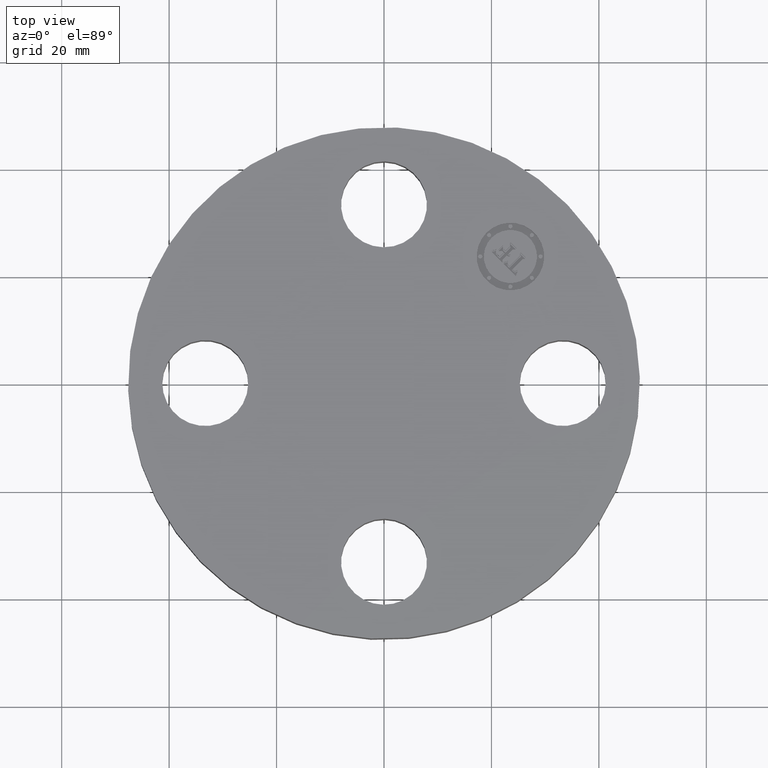
[diagram: clean part render]
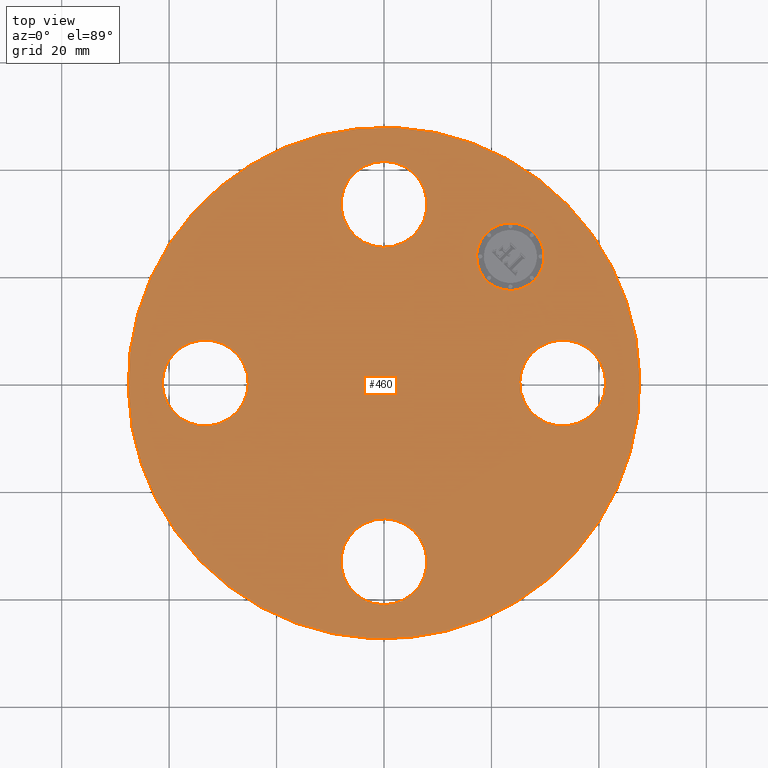
[diagram: same view with one face highlighted and labeled with its STEP entity id]
A machine part, top view. The second image highlights one B-rep face of the part: STEP entity #460.
In plain terms, the highlighted planar face has unit normal (0, 0, -1).
Its self-contained STEP definition (entity closure, byte-faithful):
#65=AXIS2_PLACEMENT_3D('Circle Axis2P3D',#63,#64,$) ;
#82=AXIS2_PLACEMENT_3D('Circle Axis2P3D',#80,#81,$) ;
#115=AXIS2_PLACEMENT_3D('Circle Axis2P3D',#113,#114,$) ;
#139=AXIS2_PLACEMENT_3D('Circle Axis2P3D',#137,#138,$) ;
#309=AXIS2_PLACEMENT_3D('Circle Axis2P3D',#307,#308,$) ;
#321=AXIS2_PLACEMENT_3D('Circle Axis2P3D',#319,#320,$) ;
#352=AXIS2_PLACEMENT_3D('Circle Axis2P3D',#350,#351,$) ;
#364=AXIS2_PLACEMENT_3D('Circle Axis2P3D',#362,#363,$) ;
#395=AXIS2_PLACEMENT_3D('Circle Axis2P3D',#393,#394,$) ;
#407=AXIS2_PLACEMENT_3D('Circle Axis2P3D',#405,#406,$) ;
#420=AXIS2_PLACEMENT_3D('Plane Axis2P3D',#417,#418,#419) ;
#444=AXIS2_PLACEMENT_3D('Circle Axis2P3D',#442,#443,$) ;
#453=AXIS2_PLACEMENT_3D('Circle Axis2P3D',#451,#452,$) ;
#46=CARTESIAN_POINT('Vertex',(1.03356149301,0.151019044661,0.560000000002)) ;
#60=CARTESIAN_POINT('Vertex',(1.586438507,-0.151019044661,0.560000000002)) ;
#63=CARTESIAN_POINT('Axis2P3D Location',(1.31000000001,0.,0.560000000002)) ;
#80=CARTESIAN_POINT('Axis2P3D Location',(1.31000000001,0.,0.560000000002)) ;
#110=CARTESIAN_POINT('Vertex',(-0.898922884886,-1.64546730355,0.560000000002)) ;
#113=CARTESIAN_POINT('Axis2P3D Location',(0.,0.,0.560000000002)) ;
#117=CARTESIAN_POINT('Vertex',(0.898922884886,1.64546730355,0.560000000002)) ;
#137=CARTESIAN_POINT('Axis2P3D Location',(0.,0.,0.560000000002)) ;
#297=CARTESIAN_POINT('Vertex',(-0.151019044661,1.03356149301,0.560000000002)) ;
#304=CARTESIAN_POINT('Vertex',(0.151019044661,1.586438507,0.560000000002)) ;
#307=CARTESIAN_POINT('Axis2P3D Location',(-2.40643096033E-016,1.31000000001,0.560000000002)) ;
#319=CARTESIAN_POINT('Axis2P3D Location',(-2.40643096033E-016,1.31000000001,0.560000000002)) ;
#340=CARTESIAN_POINT('Vertex',(-1.03356149301,-0.151019044661,0.560000000002)) ;
#347=CARTESIAN_POINT('Vertex',(-1.586438507,0.151019044661,0.560000000002)) ;
#350=CARTESIAN_POINT('Axis2P3D Location',(-1.31000000001,-1.60428730689E-016,0.560000000002)) ;
#362=CARTESIAN_POINT('Axis2P3D Location',(-1.31000000001,-1.60428730689E-016,0.560000000002)) ;
#383=CARTESIAN_POINT('Vertex',(0.151019044661,-1.03356149301,0.560000000002)) ;
#390=CARTESIAN_POINT('Vertex',(-0.151019044661,-1.586438507,0.560000000002)) ;
#393=CARTESIAN_POINT('Axis2P3D Location',(-1.99526869207E-016,-1.31000000001,0.560000000002)) ;
#405=CARTESIAN_POINT('Axis2P3D Location',(-1.99526869207E-016,-1.31000000001,0.560000000002)) ;
#417=CARTESIAN_POINT('Axis2P3D Location',(0.,1.87500000001,0.560000000002)) ;
#442=CARTESIAN_POINT('Axis2P3D Location',(0.926309883358,0.926309883358,0.560000000002)) ;
#446=CARTESIAN_POINT('Vertex',(0.751300955014,1.1013188117,0.560000000002)) ;
#448=CARTESIAN_POINT('Vertex',(1.1013188117,0.751300955014,0.560000000002)) ;
#451=CARTESIAN_POINT('Axis2P3D Location',(0.926309883358,0.926309883358,0.560000000002)) ;
#64=DIRECTION('Axis2P3D Direction',(0.,-0.,-0.0393700787402)) ;
#81=DIRECTION('Axis2P3D Direction',(0.,-0.,-0.0393700787402)) ;
#114=DIRECTION('Axis2P3D Direction',(0.,0.,-0.0393700787402)) ;
#138=DIRECTION('Axis2P3D Direction',(0.,0.,-0.0393700787402)) ;
#308=DIRECTION('Axis2P3D Direction',(0.,0.,-0.0393700787402)) ;
#320=DIRECTION('Axis2P3D Direction',(0.,0.,-0.0393700787402)) ;
#351=DIRECTION('Axis2P3D Direction',(-0.,0.,-0.0393700787402)) ;
#363=DIRECTION('Axis2P3D Direction',(-0.,0.,-0.0393700787402)) ;
#394=DIRECTION('Axis2P3D Direction',(0.,-0.,-0.0393700787402)) ;
#406=DIRECTION('Axis2P3D Direction',(0.,-0.,-0.0393700787402)) ;
#418=DIRECTION('Axis2P3D Direction',(0.,0.,-0.0393700787402)) ;
#419=DIRECTION('Axis2P3D XDirection',(0.0393700787402,0.,0.)) ;
#443=DIRECTION('Axis2P3D Direction',(0.,0.,-0.0393700787402)) ;
#452=DIRECTION('Axis2P3D Direction',(0.,0.,-0.0393700787402)) ;
#423=ORIENTED_EDGE('',*,*,#141,.F.) ;
#424=ORIENTED_EDGE('',*,*,#119,.F.) ;
#427=ORIENTED_EDGE('',*,*,#67,.T.) ;
#428=ORIENTED_EDGE('',*,*,#84,.T.) ;
#431=ORIENTED_EDGE('',*,*,#409,.T.) ;
#432=ORIENTED_EDGE('',*,*,#397,.T.) ;
#435=ORIENTED_EDGE('',*,*,#366,.T.) ;
#436=ORIENTED_EDGE('',*,*,#354,.T.) ;
#439=ORIENTED_EDGE('',*,*,#323,.T.) ;
#440=ORIENTED_EDGE('',*,*,#311,.T.) ;
#457=ORIENTED_EDGE('',*,*,#450,.T.) ;
#458=ORIENTED_EDGE('',*,*,#455,.T.) ;
#429=FACE_BOUND('',#426,.T.) ;
#433=FACE_BOUND('',#430,.T.) ;
#437=FACE_BOUND('',#434,.T.) ;
#441=FACE_BOUND('',#438,.T.) ;
#459=FACE_BOUND('',#456,.T.) ;
#460=ADVANCED_FACE('PartBody',(#425,#429,#433,#437,#441,#459),#421,.F.) ;
#66=CIRCLE('generated circle',#65,0.315000000001) ;
#83=CIRCLE('generated circle',#82,0.315000000001) ;
#116=CIRCLE('generated circle',#115,1.87500000001) ;
#140=CIRCLE('generated circle',#139,1.87500000001) ;
#310=CIRCLE('generated circle',#309,0.315000000001) ;
#322=CIRCLE('generated circle',#321,0.315000000001) ;
#353=CIRCLE('generated circle',#352,0.315000000001) ;
#365=CIRCLE('generated circle',#364,0.315000000001) ;
#396=CIRCLE('generated circle',#395,0.315000000001) ;
#408=CIRCLE('generated circle',#407,0.315000000001) ;
#445=CIRCLE('generated circle',#444,0.247500000001) ;
#454=CIRCLE('generated circle',#453,0.247500000001) ;
#67=EDGE_CURVE('',#47,#61,#66,.T.) ;
#84=EDGE_CURVE('',#61,#47,#83,.T.) ;
#119=EDGE_CURVE('',#111,#118,#116,.T.) ;
#141=EDGE_CURVE('',#118,#111,#140,.T.) ;
#311=EDGE_CURVE('',#298,#305,#310,.T.) ;
#323=EDGE_CURVE('',#305,#298,#322,.T.) ;
#354=EDGE_CURVE('',#341,#348,#353,.T.) ;
#366=EDGE_CURVE('',#348,#341,#365,.T.) ;
#397=EDGE_CURVE('',#384,#391,#396,.T.) ;
#409=EDGE_CURVE('',#391,#384,#408,.T.) ;
#450=EDGE_CURVE('',#447,#449,#445,.T.) ;
#455=EDGE_CURVE('',#449,#447,#454,.T.) ;
#422=EDGE_LOOP('',(#423,#424)) ;
#426=EDGE_LOOP('',(#427,#428)) ;
#430=EDGE_LOOP('',(#431,#432)) ;
#434=EDGE_LOOP('',(#435,#436)) ;
#438=EDGE_LOOP('',(#439,#440)) ;
#456=EDGE_LOOP('',(#457,#458)) ;
#425=FACE_OUTER_BOUND('',#422,.T.) ;
#421=PLANE('',#420) ;
#47=VERTEX_POINT('',#46) ;
#61=VERTEX_POINT('',#60) ;
#111=VERTEX_POINT('',#110) ;
#118=VERTEX_POINT('',#117) ;
#298=VERTEX_POINT('',#297) ;
#305=VERTEX_POINT('',#304) ;
#341=VERTEX_POINT('',#340) ;
#348=VERTEX_POINT('',#347) ;
#384=VERTEX_POINT('',#383) ;
#391=VERTEX_POINT('',#390) ;
#447=VERTEX_POINT('',#446) ;
#449=VERTEX_POINT('',#448) ;